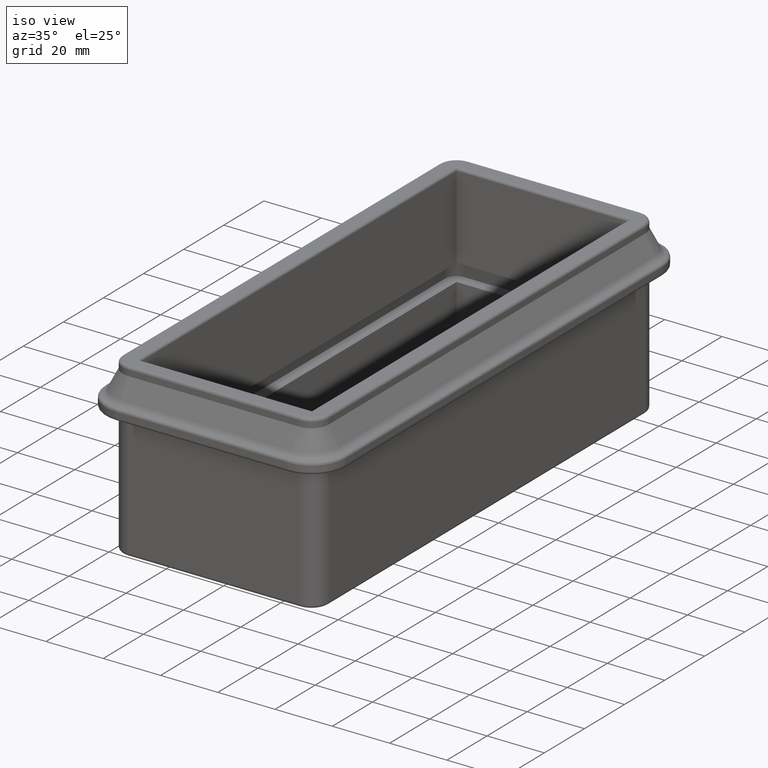
[diagram: clean part render]
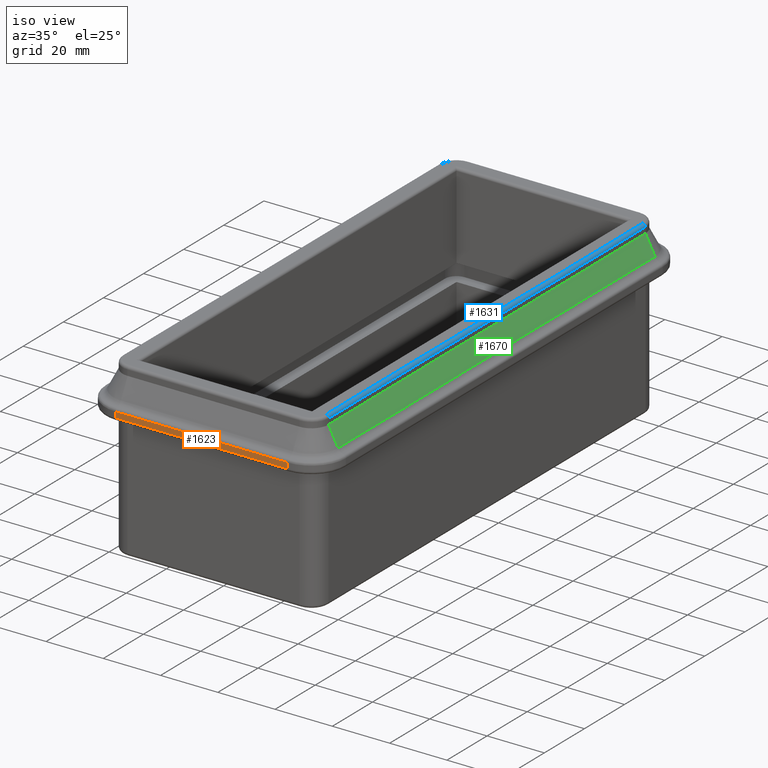
[diagram: same view with three faces highlighted in distinct colors, each labeled with its STEP entity id]
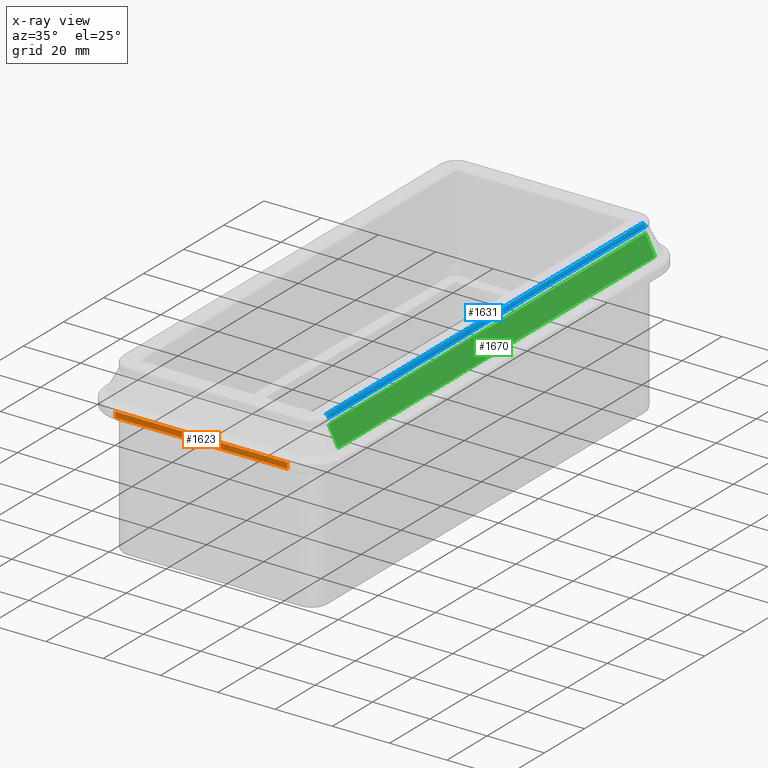
[diagram: x-ray of the same camera — body ghosted, the three highlighted faces saturated]
A machine part, iso view with three faces highlighted in distinct colors.
The next image is the same camera in x-ray (body ghosted, the three faces saturated) — at least one of them is partly hidden behind the body in this view.
Their STEP definitions:

[orange] entity #1623 — the highlighted planar face has unit normal (0, -1, -0).
#36=PLANE('',#1816);
#136=FACE_OUTER_BOUND('',#246,.T.);
#246=EDGE_LOOP('',(#1248,#1249,#1250,#1251));
#321=LINE('',#2564,#449);
#348=LINE('',#2675,#476);
#358=LINE('',#2712,#486);
#361=LINE('',#2725,#489);
#449=VECTOR('',#2007,10.);
#476=VECTOR('',#2128,10.);
#486=VECTOR('',#2176,10.);
#489=VECTOR('',#2199,10.);
#691=VERTEX_POINT('',#2558);
#692=VERTEX_POINT('',#2562);
#728=VERTEX_POINT('',#2669);
#729=VERTEX_POINT('',#2673);
#840=EDGE_CURVE('',#692,#691,#321,.T.);
#895=EDGE_CURVE('',#729,#728,#348,.T.);
#914=EDGE_CURVE('',#692,#728,#358,.T.);
#921=EDGE_CURVE('',#691,#729,#361,.T.);
#1248=ORIENTED_EDGE('',*,*,#895,.F.);
#1249=ORIENTED_EDGE('',*,*,#921,.F.);
#1250=ORIENTED_EDGE('',*,*,#840,.F.);
#1251=ORIENTED_EDGE('',*,*,#914,.T.);
#1623=ADVANCED_FACE('',(#136),#36,.T.);
#1816=AXIS2_PLACEMENT_3D('',#2726,#2200,#2201);
#2007=DIRECTION('',(1.,0.,0.));
#2128=DIRECTION('',(-1.,0.,0.));
#2176=DIRECTION('',(-1.83618915570784E-30,2.22044604925031E-15,-1.));
#2199=DIRECTION('',(-1.83618915570784E-30,2.22044604925031E-15,-1.));
#2200=DIRECTION('center_axis',(0.,-1.,-2.22044604925031E-15));
#2201=DIRECTION('ref_axis',(-1.83618915570784E-30,2.22044604925031E-15,
-1.));
#2558=CARTESIAN_POINT('',(30.,-91.,18.));
#2562=CARTESIAN_POINT('',(-30.,-91.,18.));
#2564=CARTESIAN_POINT('',(-35.0381017979777,-91.,18.));
#2669=CARTESIAN_POINT('',(-30.,-91.,16.));
#2673=CARTESIAN_POINT('',(30.,-91.,16.));
#2675=CARTESIAN_POINT('',(-36.,-91.,16.));
#2712=CARTESIAN_POINT('',(-30.,-91.,15.));
#2725=CARTESIAN_POINT('',(30.,-91.,15.));
#2726=CARTESIAN_POINT('Origin',(-30.,-91.,19.));

[blue] entity #1631 — the highlighted cylindrical surface (edge-blend (fillet) strip) has radius 1 mm, axis along (-0, 1, 0).
#144=FACE_OUTER_BOUND('',#254,.T.);
#254=EDGE_LOOP('',(#1280,#1281,#1282,#1283));
#368=LINE('',#2773,#496);
#369=LINE('',#2774,#497);
#496=VECTOR('',#2256,10.);
#497=VECTOR('',#2257,10.);
#632=CIRCLE('',#1818,1.);
#645=CIRCLE('',#1837,1.);
#738=VERTEX_POINT('',#2728);
#739=VERTEX_POINT('',#2729);
#752=VERTEX_POINT('',#2767);
#753=VERTEX_POINT('',#2768);
#922=EDGE_CURVE('',#738,#739,#632,.T.);
#941=EDGE_CURVE('',#752,#753,#645,.T.);
#944=EDGE_CURVE('',#738,#753,#368,.T.);
#945=EDGE_CURVE('',#752,#739,#369,.T.);
#1280=ORIENTED_EDGE('',*,*,#922,.F.);
#1281=ORIENTED_EDGE('',*,*,#944,.T.);
#1282=ORIENTED_EDGE('',*,*,#941,.F.);
#1283=ORIENTED_EDGE('',*,*,#945,.T.);
#1552=CYLINDRICAL_SURFACE('',#1840,1.);
#1631=ADVANCED_FACE('',(#144),#1552,.T.);
#1818=AXIS2_PLACEMENT_3D('',#2730,#2204,#2205);
#1837=AXIS2_PLACEMENT_3D('',#2769,#2248,#2249);
#1840=AXIS2_PLACEMENT_3D('',#2772,#2254,#2255);
#2204=DIRECTION('center_axis',(0.,1.,0.));
#2205=DIRECTION('ref_axis',(0.,0.,1.));
#2248=DIRECTION('center_axis',(0.,-1.,0.));
#2249=DIRECTION('ref_axis',(1.,0.,0.));
#2254=DIRECTION('center_axis',(-1.6864147209496E-16,1.,0.));
#2255=DIRECTION('ref_axis',(0.707106781186544,0.,0.707106781186551));
#2256=DIRECTION('',(1.6864147209496E-16,-1.,0.));
#2257=DIRECTION('',(-1.6864147209496E-16,1.,0.));
#2728=CARTESIAN_POINT('',(34.9999999999999,79.,30.));
#2729=CARTESIAN_POINT('',(35.9999999999999,79.,29.));
#2730=CARTESIAN_POINT('Origin',(34.9999999999999,79.,29.));
#2767=CARTESIAN_POINT('',(36.,-79.,29.));
#2768=CARTESIAN_POINT('',(35.,-79.,30.));
#2769=CARTESIAN_POINT('Origin',(35.,-79.,29.));
#2772=CARTESIAN_POINT('Origin',(35.,-79.,29.));
#2773=CARTESIAN_POINT('',(35.,-79.,30.));
#2774=CARTESIAN_POINT('',(36.,-79.,29.));

[green] entity #1670 — the highlighted planar face has unit normal (0.891, 0, 0.454).
#51=PLANE('',#1906);
#183=FACE_OUTER_BOUND('',#295,.T.);
#295=EDGE_LOOP('',(#1452,#1453,#1454,#1455));
#315=LINE('',#2525,#443);
#420=LINE('',#2933,#548);
#424=LINE('',#2942,#552);
#425=LINE('',#2943,#553);
#443=VECTOR('',#1957,2.99999999999999);
#548=VECTOR('',#2436,10.);
#552=VECTOR('',#2444,10.);
#553=VECTOR('',#2445,10.);
#677=VERTEX_POINT('',#2510);
#681=VERTEX_POINT('',#2523);
#755=VERTEX_POINT('',#2785);
#800=VERTEX_POINT('',#2941);
#820=EDGE_CURVE('',#681,#677,#315,.T.);
#1023=EDGE_CURVE('',#755,#681,#420,.T.);
#1027=EDGE_CURVE('',#800,#755,#424,.T.);
#1028=EDGE_CURVE('',#800,#677,#425,.T.);
#1452=ORIENTED_EDGE('',*,*,#820,.F.);
#1453=ORIENTED_EDGE('',*,*,#1023,.F.);
#1454=ORIENTED_EDGE('',*,*,#1027,.F.);
#1455=ORIENTED_EDGE('',*,*,#1028,.T.);
#1670=ADVANCED_FACE('',(#183),#51,.T.);
#1906=AXIS2_PLACEMENT_3D('',#2940,#2442,#2443);
#1957=DIRECTION('',(0.,-1.,0.));
#2436=DIRECTION('',(0.453990499739547,4.52083399194499E-17,-0.891006524188368));
#2442=DIRECTION('center_axis',(0.891006524188368,1.5026065188534E-16,0.453990499739547));
#2443=DIRECTION('ref_axis',(0.453990499739547,4.52083399194499E-17,-0.891006524188368));
#2444=DIRECTION('',(-1.55793749041947E-16,1.,0.));
#2445=DIRECTION('',(0.453990499739547,4.52083399194499E-17,-0.891006524188368));
#2510=CARTESIAN_POINT('',(39.3032180033851,-79.,20.5170696445826));
#2523=CARTESIAN_POINT('',(39.3032180033851,79.,20.5170696445826));
#2525=CARTESIAN_POINT('',(39.3032180033851,-79.,20.5170696445826));
#2785=CARTESIAN_POINT('',(35.9999999999999,79.,27.));
#2933=CARTESIAN_POINT('',(40.0762035959554,79.,19.));
#2940=CARTESIAN_POINT('Origin',(36.,-79.,27.));
#2941=CARTESIAN_POINT('',(36.,-79.,27.));
#2942=CARTESIAN_POINT('',(36.,-79.,27.));
#2943=CARTESIAN_POINT('',(40.0762035959554,-79.,19.));